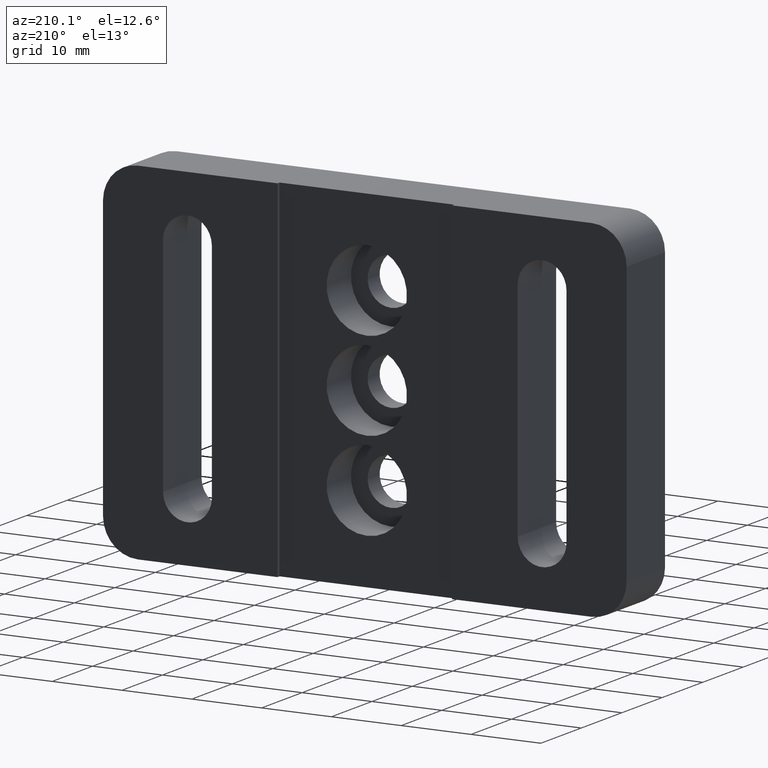
[diagram: clean part render]
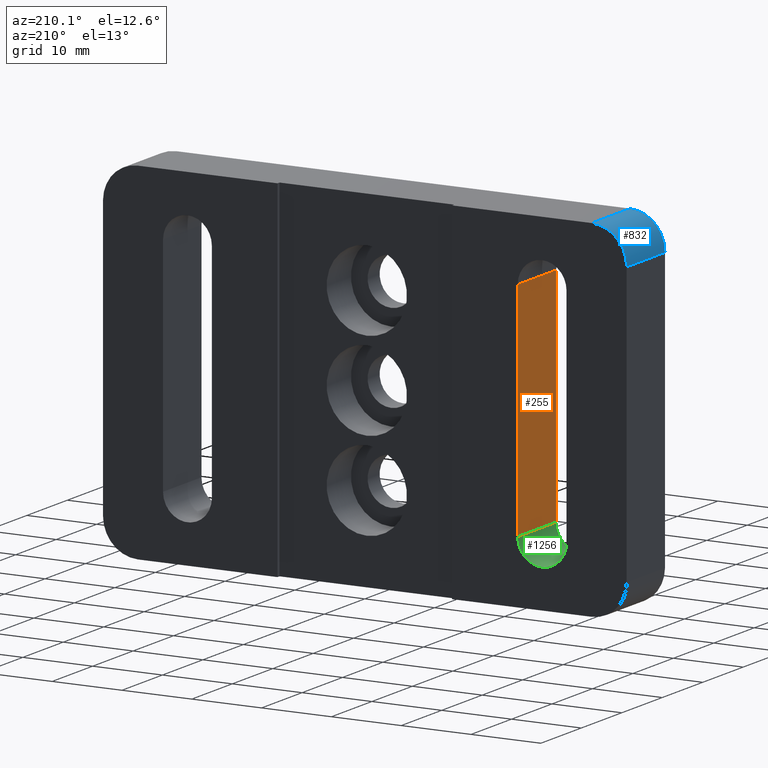
[diagram: same view with three faces highlighted in distinct colors, each labeled with its STEP entity id]
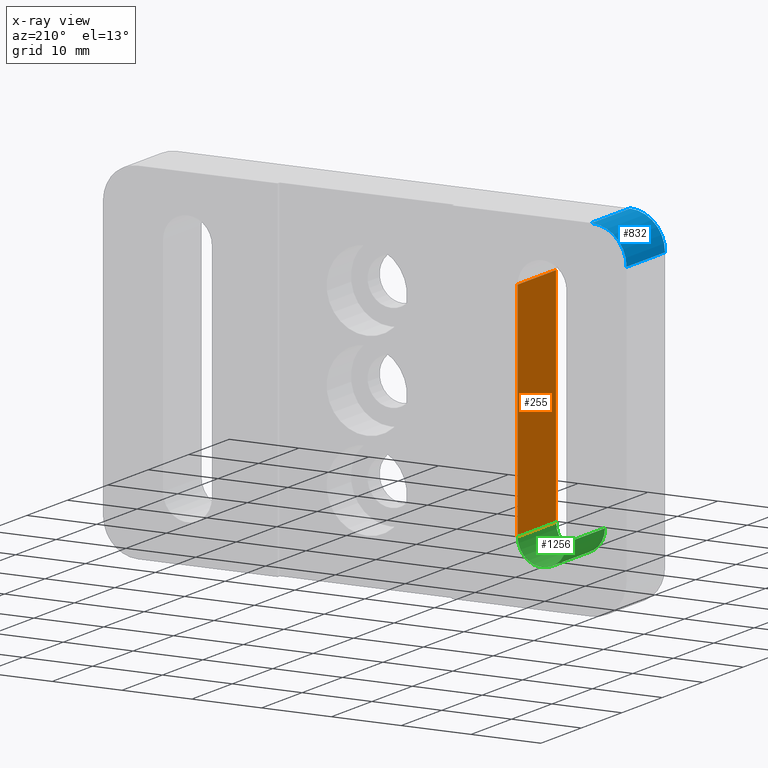
[diagram: x-ray of the same camera — body ghosted, the three highlighted faces saturated]
A machine part, auxiliary view with three faces highlighted in distinct colors.
The next image is the same camera in x-ray (body ghosted, the three faces saturated) — at least one of them is partly hidden behind the body in this view.
Their STEP definitions:

[orange] entity #255 — the highlighted planar face has unit normal (1, 0, -0).
#13 = LINE ( 'NONE', #435, #1080 ) ;
#17 = DIRECTION ( 'NONE',  ( -0.0000000000000000000, 1.000000000000000000, -0.0000000000000000000 ) ) ;
#53 = LINE ( 'NONE', #336, #837 ) ;
#57 = CARTESIAN_POINT ( 'NONE',  ( -21.89999999999999900, -9.500000000000000000, 16.00000000000000000 ) ) ;
#59 = DIRECTION ( 'NONE',  ( -0.0000000000000000000, 1.000000000000000000, -0.0000000000000000000 ) ) ;
#97 = ORIENTED_EDGE ( 'NONE', *, *, #202, .T. ) ;
#111 = CARTESIAN_POINT ( 'NONE',  ( -21.89999999999999900, 0.0000000000000000000, -16.00000000000000000 ) ) ;
#142 = EDGE_CURVE ( 'NONE', #167, #952, #53, .T. ) ;
#163 = EDGE_CURVE ( 'NONE', #582, #952, #477, .T. ) ;
#167 = VERTEX_POINT ( 'NONE', #551 ) ;
#202 = EDGE_CURVE ( 'NONE', #1108, #582, #1119, .T. ) ;
#255 = ADVANCED_FACE ( 'NONE', ( #1283 ), #535, .F. ) ;
#304 = AXIS2_PLACEMENT_3D ( 'NONE', #1239, #324, #1220 ) ;
#324 = DIRECTION ( 'NONE',  ( 1.000000000000000000, 0.0000000000000000000, -0.0000000000000000000 ) ) ;
#336 = CARTESIAN_POINT ( 'NONE',  ( -21.89999999999999900, -10.00000000000000000, -16.00000000000000000 ) ) ;
#435 = CARTESIAN_POINT ( 'NONE',  ( -21.90000000000000200, -9.500000000000000000, 9.696484173239974200E-015 ) ) ;
#477 = LINE ( 'NONE', #1245, #637 ) ;
#535 = PLANE ( 'NONE',  #304 ) ;
#551 = CARTESIAN_POINT ( 'NONE',  ( -21.89999999999999900, -9.500000000000000000, -16.00000000000000000 ) ) ;
#569 = EDGE_CURVE ( 'NONE', #1108, #167, #13, .T. ) ;
#582 = VERTEX_POINT ( 'NONE', #1028 ) ;
#592 = VECTOR ( 'NONE', #59, 1000.000000000000000 ) ;
#631 = ORIENTED_EDGE ( 'NONE', *, *, #142, .F. ) ;
#637 = VECTOR ( 'NONE', #648, 1000.000000000000000 ) ;
#648 = DIRECTION ( 'NONE',  ( -0.0000000000000000000, -0.0000000000000000000, -1.000000000000000000 ) ) ;
#837 = VECTOR ( 'NONE', #17, 1000.000000000000000 ) ;
#902 = EDGE_LOOP ( 'NONE', ( #97, #1262, #631, #1164 ) ) ;
#952 = VERTEX_POINT ( 'NONE', #111 ) ;
#1028 = CARTESIAN_POINT ( 'NONE',  ( -21.89999999999999900, 0.0000000000000000000, 16.00000000000000000 ) ) ;
#1061 = CARTESIAN_POINT ( 'NONE',  ( -21.89999999999999900, -10.00000000000000000, 16.00000000000000000 ) ) ;
#1080 = VECTOR ( 'NONE', #1246, 1000.000000000000000 ) ;
#1108 = VERTEX_POINT ( 'NONE', #57 ) ;
#1119 = LINE ( 'NONE', #1061, #592 ) ;
#1164 = ORIENTED_EDGE ( 'NONE', *, *, #569, .F. ) ;
#1220 = DIRECTION ( 'NONE',  ( -0.0000000000000000000, 0.0000000000000000000, -1.000000000000000000 ) ) ;
#1239 = CARTESIAN_POINT ( 'NONE',  ( -21.89999999999999900, -10.00000000000000000, -16.00000000000000000 ) ) ;
#1245 = CARTESIAN_POINT ( 'NONE',  ( -21.89999999999999900, 0.0000000000000000000, -16.00000000000000000 ) ) ;
#1246 = DIRECTION ( 'NONE',  ( 0.0000000000000000000, 0.0000000000000000000, -1.000000000000000000 ) ) ;
#1262 = ORIENTED_EDGE ( 'NONE', *, *, #163, .T. ) ;
#1283 = FACE_OUTER_BOUND ( 'NONE', #902, .T. ) ;

[blue] entity #832 — the highlighted cylindrical surface (partial cylindrical patch) has radius 5 mm, axis along (0, 1, 0).
#35 = CARTESIAN_POINT ( 'NONE',  ( -37.49999999999996400, -9.500000000000000000, 19.99999999999999300 ) ) ;
#147 = VERTEX_POINT ( 'NONE', #555 ) ;
#180 = DIRECTION ( 'NONE',  ( 0.0000000000000000000, 1.000000000000000000, 0.0000000000000000000 ) ) ;
#212 = VERTEX_POINT ( 'NONE', #976 ) ;
#216 = LINE ( 'NONE', #977, #566 ) ;
#221 = CARTESIAN_POINT ( 'NONE',  ( -32.49999999999997200, 0.0000000000000000000, 24.99999999999998900 ) ) ;
#308 = EDGE_CURVE ( 'NONE', #987, #212, #694, .T. ) ;
#354 = ORIENTED_EDGE ( 'NONE', *, *, #836, .T. ) ;
#390 = FACE_OUTER_BOUND ( 'NONE', #457, .T. ) ;
#454 = DIRECTION ( 'NONE',  ( 0.0000000000000000000, 1.000000000000000000, 0.0000000000000000000 ) ) ;
#457 = EDGE_LOOP ( 'NONE', ( #595, #645, #522, #354 ) ) ;
#504 = CARTESIAN_POINT ( 'NONE',  ( -32.49999999999997200, -9.500000000000000000, 19.99999999999999300 ) ) ;
#511 = DIRECTION ( 'NONE',  ( 0.0000000000000000000, 1.000000000000000000, -0.0000000000000000000 ) ) ;
#522 = ORIENTED_EDGE ( 'NONE', *, *, #896, .T. ) ;
#555 = CARTESIAN_POINT ( 'NONE',  ( -32.49999999999997200, -9.500000000000000000, 24.99999999999998900 ) ) ;
#566 = VECTOR ( 'NONE', #180, 1000.000000000000000 ) ;
#595 = ORIENTED_EDGE ( 'NONE', *, *, #1114, .F. ) ;
#599 = CARTESIAN_POINT ( 'NONE',  ( -32.49999999999997200, -9.500000000000000000, 19.99999999999999300 ) ) ;
#615 = CIRCLE ( 'NONE', #872, 4.999999999999993800 ) ;
#619 = AXIS2_PLACEMENT_3D ( 'NONE', #1088, #511, #1090 ) ;
#645 = ORIENTED_EDGE ( 'NONE', *, *, #308, .F. ) ;
#694 = LINE ( 'NONE', #35, #1193 ) ;
#832 = ADVANCED_FACE ( 'NONE', ( #390 ), #942, .T. ) ;
#836 = EDGE_CURVE ( 'NONE', #147, #1141, #216, .T. ) ;
#872 = AXIS2_PLACEMENT_3D ( 'NONE', #504, #1186, #898 ) ;
#896 = EDGE_CURVE ( 'NONE', #987, #147, #615, .T. ) ;
#898 = DIRECTION ( 'NONE',  ( 0.0000000000000000000, 0.0000000000000000000, 1.000000000000000000 ) ) ;
#939 = CARTESIAN_POINT ( 'NONE',  ( -37.49999999999996400, -9.500000000000000000, 19.99999999999999300 ) ) ;
#942 = CYLINDRICAL_SURFACE ( 'NONE', #949, 4.999999999999993800 ) ;
#949 = AXIS2_PLACEMENT_3D ( 'NONE', #599, #1293, #1171 ) ;
#976 = CARTESIAN_POINT ( 'NONE',  ( -37.49999999999996400, 0.0000000000000000000, 19.99999999999999300 ) ) ;
#977 = CARTESIAN_POINT ( 'NONE',  ( -32.49999999999997200, -9.500000000000000000, 24.99999999999998900 ) ) ;
#987 = VERTEX_POINT ( 'NONE', #939 ) ;
#1088 = CARTESIAN_POINT ( 'NONE',  ( -32.49999999999997200, 0.0000000000000000000, 19.99999999999999300 ) ) ;
#1090 = DIRECTION ( 'NONE',  ( 0.0000000000000000000, 0.0000000000000000000, 1.000000000000000000 ) ) ;
#1114 = EDGE_CURVE ( 'NONE', #212, #1141, #1197, .T. ) ;
#1141 = VERTEX_POINT ( 'NONE', #221 ) ;
#1171 = DIRECTION ( 'NONE',  ( 0.0000000000000000000, 0.0000000000000000000, 1.000000000000000000 ) ) ;
#1186 = DIRECTION ( 'NONE',  ( 0.0000000000000000000, 1.000000000000000000, -0.0000000000000000000 ) ) ;
#1193 = VECTOR ( 'NONE', #454, 1000.000000000000000 ) ;
#1197 = CIRCLE ( 'NONE', #619, 4.999999999999993800 ) ;
#1293 = DIRECTION ( 'NONE',  ( 0.0000000000000000000, 1.000000000000000000, 0.0000000000000000000 ) ) ;

[green] entity #1256 — the highlighted cylindrical surface (edge-blend (fillet) strip) has radius 3.5 mm, axis along (-0, 1, -0).
#8 = AXIS2_PLACEMENT_3D ( 'NONE', #71, #702, #78 ) ;
#10 = ORIENTED_EDGE ( 'NONE', *, *, #70, .T. ) ;
#17 = DIRECTION ( 'NONE',  ( -0.0000000000000000000, 1.000000000000000000, -0.0000000000000000000 ) ) ;
#26 = CARTESIAN_POINT ( 'NONE',  ( -28.89999999999999900, -10.00000000000000000, -16.00000000000000000 ) ) ;
#31 = EDGE_CURVE ( 'NONE', #167, #1086, #1175, .T. ) ;
#41 = CARTESIAN_POINT ( 'NONE',  ( -28.89999999999999500, 0.0000000000000000000, -16.00000000000000000 ) ) ;
#53 = LINE ( 'NONE', #336, #837 ) ;
#70 = EDGE_CURVE ( 'NONE', #952, #721, #135, .T. ) ;
#71 = CARTESIAN_POINT ( 'NONE',  ( -25.39999999999999900, -10.00000000000000000, -16.00000000000000000 ) ) ;
#78 = DIRECTION ( 'NONE',  ( 0.0000000000000000000, 0.0000000000000000000, 1.000000000000000000 ) ) ;
#81 = CYLINDRICAL_SURFACE ( 'NONE', #8, 3.499999999999999600 ) ;
#111 = CARTESIAN_POINT ( 'NONE',  ( -21.89999999999999900, 0.0000000000000000000, -16.00000000000000000 ) ) ;
#113 = DIRECTION ( 'NONE',  ( 0.0000000000000000000, 1.000000000000000000, -0.0000000000000000000 ) ) ;
#135 = CIRCLE ( 'NONE', #1296, 3.499999999999999600 ) ;
#137 = ORIENTED_EDGE ( 'NONE', *, *, #31, .F. ) ;
#142 = EDGE_CURVE ( 'NONE', #167, #952, #53, .T. ) ;
#156 = EDGE_LOOP ( 'NONE', ( #957, #10, #903, #137 ) ) ;
#167 = VERTEX_POINT ( 'NONE', #551 ) ;
#171 = CARTESIAN_POINT ( 'NONE',  ( -28.89999999999999900, -9.500000000000000000, -16.00000000000000000 ) ) ;
#227 = DIRECTION ( 'NONE',  ( 0.0000000000000000000, 0.0000000000000000000, -1.000000000000000000 ) ) ;
#295 = EDGE_CURVE ( 'NONE', #1086, #721, #539, .T. ) ;
#336 = CARTESIAN_POINT ( 'NONE',  ( -21.89999999999999900, -10.00000000000000000, -16.00000000000000000 ) ) ;
#474 = DIRECTION ( 'NONE',  ( -0.0000000000000000000, 1.000000000000000000, -0.0000000000000000000 ) ) ;
#539 = LINE ( 'NONE', #26, #754 ) ;
#551 = CARTESIAN_POINT ( 'NONE',  ( -21.89999999999999900, -9.500000000000000000, -16.00000000000000000 ) ) ;
#702 = DIRECTION ( 'NONE',  ( -0.0000000000000000000, 1.000000000000000000, -0.0000000000000000000 ) ) ;
#721 = VERTEX_POINT ( 'NONE', #41 ) ;
#733 = DIRECTION ( 'NONE',  ( 0.0000000000000000000, 1.000000000000000000, -0.0000000000000000000 ) ) ;
#738 = CARTESIAN_POINT ( 'NONE',  ( -25.39999999999999900, 0.0000000000000000000, -16.00000000000000000 ) ) ;
#754 = VECTOR ( 'NONE', #474, 1000.000000000000000 ) ;
#837 = VECTOR ( 'NONE', #17, 1000.000000000000000 ) ;
#903 = ORIENTED_EDGE ( 'NONE', *, *, #295, .F. ) ;
#914 = DIRECTION ( 'NONE',  ( 0.0000000000000000000, 0.0000000000000000000, 1.000000000000000000 ) ) ;
#931 = AXIS2_PLACEMENT_3D ( 'NONE', #1112, #733, #914 ) ;
#952 = VERTEX_POINT ( 'NONE', #111 ) ;
#957 = ORIENTED_EDGE ( 'NONE', *, *, #142, .T. ) ;
#1086 = VERTEX_POINT ( 'NONE', #171 ) ;
#1112 = CARTESIAN_POINT ( 'NONE',  ( -25.39999999999999900, -9.500000000000000000, -16.00000000000000000 ) ) ;
#1175 = CIRCLE ( 'NONE', #931, 3.499999999999999600 ) ;
#1200 = FACE_OUTER_BOUND ( 'NONE', #156, .T. ) ;
#1256 = ADVANCED_FACE ( 'NONE', ( #1200 ), #81, .F. ) ;
#1296 = AXIS2_PLACEMENT_3D ( 'NONE', #738, #113, #227 ) ;